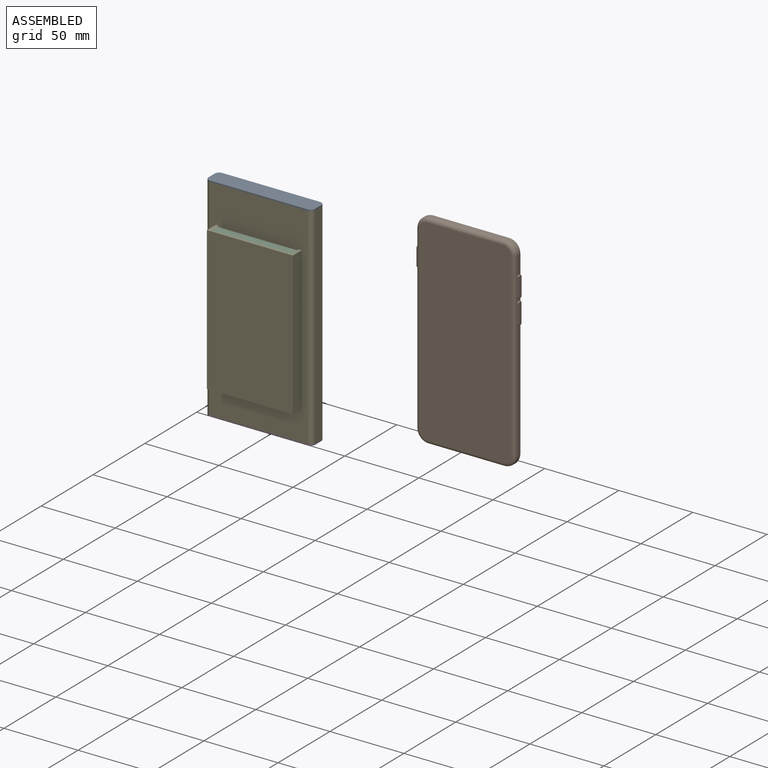
[diagram: assembled view]
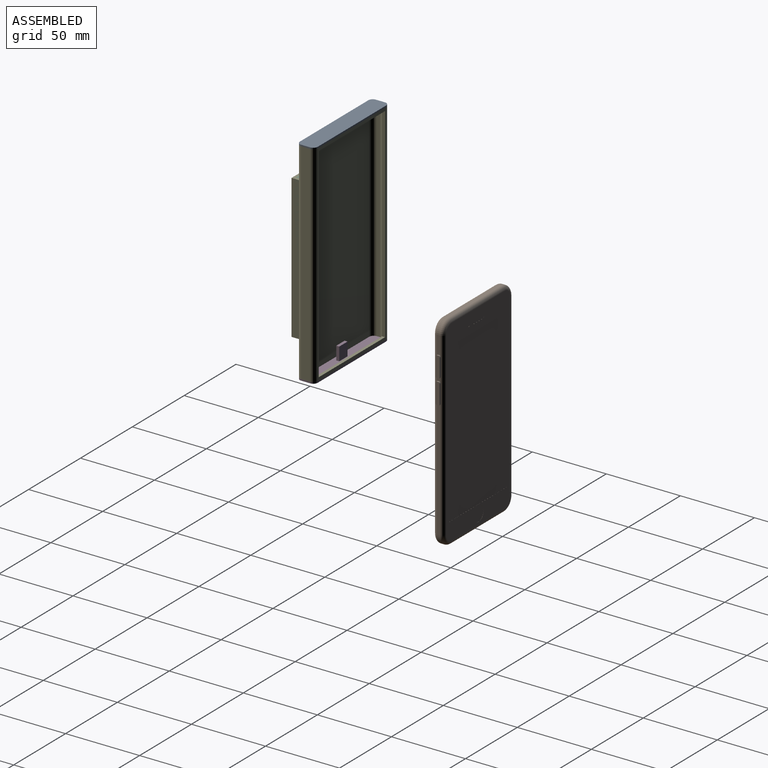
[diagram: assembled view, second angle]
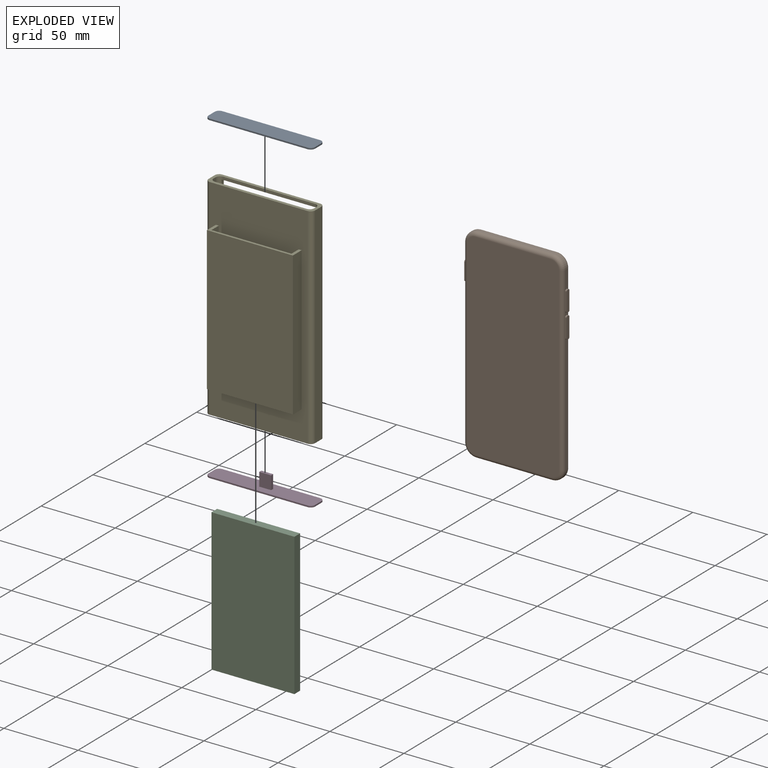
[diagram: exploded view]
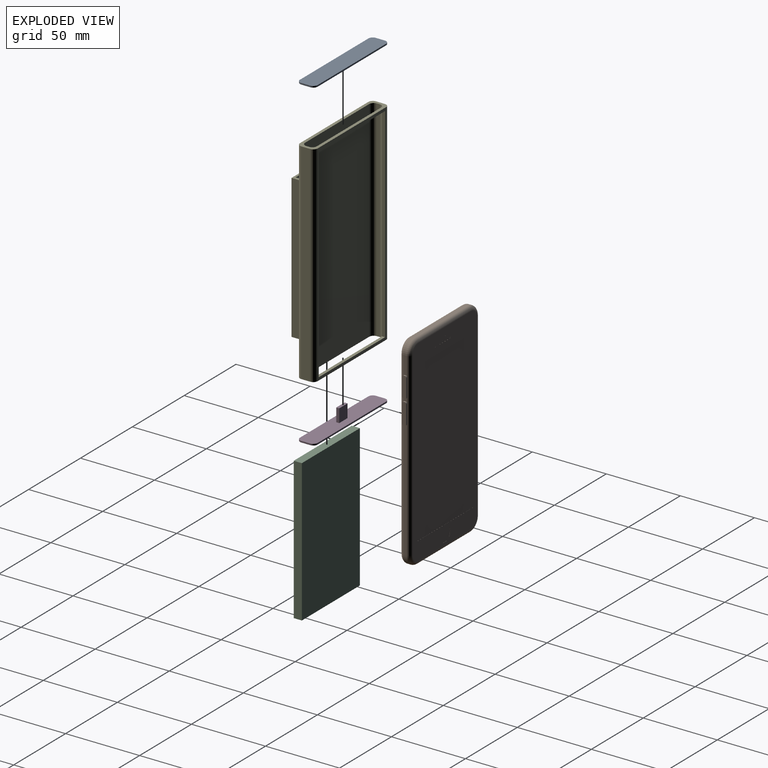
[diagram: exploded view, second angle]
ASSEMBLY  parts=5 mates=3
PART A: 10 faces, bbox 72x12x1 mm
  f0: plane 66x1mm, normal (0,1,0), area 66mm2, adj f1,f7,f8,f9
  f1: cylinder r=3mm len=3mm, axis (0,0,-1), area 4.7mm2, adj f0,f2,f8,f9
  f2: plane 6x1mm, normal (-1,0,0), area 6mm2, adj f1,f3,f8,f9
  f3: cylinder r=3mm len=3mm, axis (0,0,-1), area 4.7mm2, adj f2,f4,f8,f9
  f4: plane 66x1mm, normal (0,-1,0), area 66mm2, adj f3,f5,f8,f9
  f5: cylinder r=3mm len=3mm, axis (0,0,-1), area 4.7mm2, adj f4,f6,f8,f9
  f6: plane 6x1mm, normal (1,0,0), area 6mm2, adj f5,f7,f8,f9
  f7: cylinder r=3mm len=3mm, axis (0,0,-1), area 4.7mm2, adj f0,f6,f8,f9
  f8: plane 72x12mm, normal (0,0,1), area 856.3mm2, adj f0,f1,f2,f3,f4,f5,f6,f7
  f9: plane 72x12mm, normal (0,0,-1), area 856.3mm2, adj f0,f1,f2,f3,f4,f5,f6,f7
PART B: 83 faces, bbox 69x139.3x7 mm
  f0: plane 12.52x2.01mm, normal (-1,0,0), area 24.1mm2, adj f6,f41,f53,f75,f76,f77
  f1: plane 2.92x2.01mm, normal (-1,0,0), area 4.3mm2, adj f41,f53,f64,f65,f66,f79,f80,f81
  f2: plane 97.29x2mm, normal (1,0,0), area 194.1mm2, adj f21,f34,f35,f36,f42,f54
  f3: plane 12.29x2mm, normal (1,0,0), area 24.1mm2, adj f4,f30,f31,f32,f49,f61
  f4: cylinder r=8mm len=8mm, axis (0,0,-1), area 25.1mm2, adj f3,f5,f47,f59
  f5: plane 51x2mm, normal (0,1,0), area 102mm2, adj f4,f6,f45,f57
  f6: cylinder r=8mm len=8mm, axis (0,0,-1), area 25.1mm2, adj f0,f5,f43,f55
  f7: plane 79.91x2mm, normal (-1,0,0), area 159.1mm2, adj f8,f41,f53,f68,f69,f70
  f8: cylinder r=8mm len=8mm, axis (0,0,-1), area 25.1mm2, adj f7,f9,f39,f51
  f9: plane 51x2mm, normal (0,-1,0), area 102mm2, adj f8,f21,f38,f50
  f10: plane 1x0.05mm, normal (1,0,0), area 0.1mm2, adj f11,f16,f22,f26
  f11: plane 10x0.05mm, normal (0,-1,0), area 0.5mm2, adj f10,f12,f22,f26
  f12: plane 1x0.05mm, normal (-1,0,0), area 0.1mm2, adj f11,f16,f22,f26
  f13: plane 55x0.05mm, normal (0,1,0), area 2.8mm2, adj f14,f20,f22,f24
  f14: plane 106.54x0.05mm, normal (1,0,0), area 5.3mm2, adj f13,f15,f22,f24
  f15: plane 55x0.05mm, normal (0,-1,0), area 2.8mm2, adj f14,f20,f22,f24
  f16: plane 10x0.05mm, normal (0,1,0), area 0.5mm2, adj f10,f12,f22,f26
  f17: cylinder r=5mm len=10mm, axis (0,0,-1), area 1.6mm2, adj f22,f25
  f18: cylinder r=0.5mm len=1mm, axis (0,0,-1), area 0.2mm2, adj f22,f27
  f19: cylinder r=0.5mm len=1mm, axis (0,0,-1), area 0.2mm2, adj f22,f28
  f20: plane 106.5x0.05mm, normal (-1,0,0), area 5.3mm2, adj f13,f15,f22,f24
  f21: cylinder r=8mm len=8mm, axis (0,0,-1), area 25.1mm2, adj f2,f9,f40,f52
  f22: plane 133x62.03mm, normal (0,0,1), area 2271.7mm2, adj f10,f11,f12,f13,f14,f15,f16,f17
  f23: plane 133x62.02mm, normal (0,0,-1), area 8220.2mm2, adj f50,f51,f52,f53,f54,f55,f56,f57
  f24: plane 106.54x55mm, normal (0,0,1), area 5858.6mm2, adj f13,f14,f15,f20
  f25: plane 10x10mm, normal (0,0,1), area 78.5mm2, adj f17
  f26: plane 10x1mm, normal (0,0,1), area 10mm2, adj f10,f11,f12,f16
  f27: plane 1x1mm, normal (0,0,1), area 0.8mm2, adj f18
  f28: plane 1x1mm, normal (0,0,1), area 0.8mm2, adj f19
  f29: plane 11x1mm, normal (0,0,-1), area 11mm2, adj f30,f36,f37,f58
  f30: cylinder r=1mm len=1mm, axis (-1,0,0), area 1.6mm2, adj f3,f29,f31,f37,f60
  f31: plane 1x0.7mm, normal (0,1,0), area 0.7mm2, adj f3,f30,f32,f37
  f32: cylinder r=1mm len=1mm, axis (-1,0,0), area 1.6mm2, adj f3,f31,f33,f37,f48
  f33: plane 11x1mm, normal (0,0,1), area 11mm2, adj f32,f34,f37,f46
  f34: cylinder r=1mm len=1mm, axis (-1,0,0), area 1.6mm2, adj f2,f33,f35,f37,f44
  f35: plane 1x0.7mm, normal (0,-1,0), area 0.7mm2, adj f2,f34,f36,f37
  f36: cylinder r=1mm len=1mm, axis (-1,0,0), area 1.6mm2, adj f2,f29,f35,f37,f56
  f37: plane 13x2.7mm, normal (1,0,0), area 34.2mm2, adj f29,f30,f31,f32,f33,f34,f35,f36
  f38: cylinder r=2.5mm len=51mm, axis (-1,0,0), area 200.3mm2, adj f9,f22,f39,f40
  f39: torus R=5.5mm, axis (0,0,1), area 43.7mm2, adj f8,f22,f38,f41
  f40: torus R=5.5mm, axis (0,0,1), area 43.7mm2, adj f21,f22,f38,f42
  f41: cylinder r=2.5mm len=122mm, axis (0,1,0), area 479.1mm2, adj f0,f1,f7,f22,f39,f43,f62,f73
  f42: cylinder r=2.5mm len=97.2mm, axis (0,-1,0), area 381.7mm2, adj f2,f22,f40,f44
  f43: torus R=5.5mm, axis (0,0,1), area 43.7mm2, adj f6,f22,f41,f45
  f44: bspline ~2.55x2.54mm, area 2.9mm2, adj f22,f34,f42,f46
  f45: cylinder r=2.5mm len=51mm, axis (1,0,0), area 200.3mm2, adj f5,f22,f43,f47
  f46: cylinder r=2.5mm len=11mm, axis (0,1,0), area 38.8mm2, adj f22,f33,f44,f48
  f47: torus R=5.5mm, axis (0,0,1), area 43.7mm2, adj f4,f22,f45,f49
  f48: bspline ~2.57x2.57mm, area 2.9mm2, adj f22,f32,f46,f49
  f49: cylinder r=2.5mm len=12.2mm, axis (0,-1,0), area 47.9mm2, adj f3,f22,f47,f48
  f50: cylinder r=2.5mm len=51mm, axis (1,0,0), area 200.3mm2, adj f9,f23,f51,f52
  f51: torus R=5.5mm, axis (0,0,1), area 43.7mm2, adj f8,f23,f50,f53
  f52: torus R=5.5mm, axis (0,0,1), area 43.7mm2, adj f21,f23,f50,f54
  f53: cylinder r=2.5mm len=122mm, axis (0,-1,0), area 477.5mm2, adj f0,f1,f7,f23,f51,f55,f72,f77
  f54: cylinder r=2.5mm len=97.29mm, axis (0,1,0), area 382mm2, adj f2,f23,f52,f56
  f55: torus R=5.5mm, axis (0,0,1), area 43.7mm2, adj f6,f23,f53,f57
  f56: bspline ~2.67x2.66mm, area 2.7mm2, adj f23,f36,f54,f58
  f57: cylinder r=2.5mm len=51mm, axis (-1,0,0), area 200.3mm2, adj f5,f23,f55,f59
  f58: cylinder r=2.5mm len=11mm, axis (0,1,0), area 39.9mm2, adj f23,f29,f56,f60
  f59: torus R=5.5mm, axis (0,0,1), area 43.7mm2, adj f4,f23,f57,f61
  f60: bspline ~2.57x2.56mm, area 2.7mm2, adj f23,f30,f58,f61
  f61: cylinder r=2.5mm len=12.29mm, axis (0,1,0), area 48.2mm2, adj f3,f23,f59,f60
  f62: plane 14.23x0.5mm, normal (1,0,0), area 6.9mm2, adj f41,f63,f64,f70
  f63: plane 12.49x1mm, normal (0,0,1), area 12.5mm2, adj f62,f64,f70,f71
  f64: cylinder r=1mm len=1mm, axis (1,0,0), area 1.6mm2, adj f1,f62,f63,f65,f71
  f65: plane 1x0.7mm, normal (0,1,0), area 0.7mm2, adj f1,f64,f66,f71
  f66: cylinder r=1mm len=1mm, axis (1,0,0), area 1.6mm2, adj f1,f65,f67,f71,f72
  f67: plane 12.49x1mm, normal (0,0,-1), area 12.5mm2, adj f66,f68,f71,f72
  f68: cylinder r=1mm len=1mm, axis (1,0,0), area 1.6mm2, adj f7,f67,f69,f71,f72
  f69: plane 1x0.7mm, normal (0,-1,0), area 0.7mm2, adj f7,f68,f70,f71
  f70: cylinder r=1mm len=1mm, axis (1,0,0), area 1.6mm2, adj f7,f62,f63,f69,f71
  f71: plane 14.49x2.7mm, normal (-1,0,0), area 38.3mm2, adj f63,f64,f65,f66,f67,f68,f69,f70
  f72: plane 13.69x0.2mm, normal (1,0,0), area 2.7mm2, adj f53,f66,f67,f68
  f73: plane 13.81x0.57mm, normal (1,0,0), area 7.6mm2, adj f41,f74,f75,f81
  f74: plane 12x1mm, normal (0,0,1), area 12mm2, adj f73,f75,f81,f82
  f75: cylinder r=1mm len=1mm, axis (1,0,0), area 1.6mm2, adj f0,f73,f74,f76,f82
  f76: plane 1x0.7mm, normal (0,1,0), area 0.7mm2, adj f0,f75,f77,f82
  f77: cylinder r=1mm len=1mm, axis (1,0,0), area 1.6mm2, adj f0,f53,f76,f78,f82
  f78: plane 12.01x1.01mm, normal (0,0,-1), area 12mm2, adj f53,f77,f79,f82
  f79: cylinder r=1mm len=1mm, axis (1,0,0), area 1.6mm2, adj f1,f53,f78,f80,f82
  f80: plane 1x0.7mm, normal (0,-1,0), area 0.7mm2, adj f1,f79,f81,f82
  f81: cylinder r=1mm len=1mm, axis (1,0,0), area 1.6mm2, adj f1,f73,f74,f80,f82
  f82: plane 14x2.7mm, normal (-1,0,0), area 36.9mm2, adj f74,f75,f76,f77,f78,f79,f80,f81
PART C: 11 faces, bbox 56x5.5x96 mm
  f0: plane 56x5.5mm, normal (0,0,-1), area 292mm2, adj f2,f3,f4,f5,f6,f7,f8,f9
  f1: plane 56x5.5mm, normal (0,0,1), area 308mm2, adj f2,f3,f4,f5
  f2: plane 96x5.5mm, normal (-1,0,0), area 528mm2, adj f0,f1,f4,f5
  f3: plane 96x5.5mm, normal (1,0,0), area 528mm2, adj f0,f1,f4,f5
  f4: plane 96x56mm, normal (0,-1,0), area 5376mm2, adj f0,f1,f2,f3
  f5: plane 96x56mm, normal (0,1,0), area 5376mm2, adj f0,f1,f2,f3
  f6: plane 10x8mm, normal (0,1,0), area 80mm2, adj f0,f7,f9,f10
  f7: plane 10x2mm, normal (1,0,0), area 20mm2, adj f0,f6,f8,f10
  f8: plane 10x8mm, normal (0,-1,0), area 80mm2, adj f0,f7,f9,f10
  f9: plane 10x2mm, normal (-1,0,0), area 20mm2, adj f0,f6,f8,f10
  f10: plane 8x2mm, normal (0,0,-1), area 16mm2, adj f6,f7,f8,f9
PART D: 15 faces, bbox 72x12x10 mm
  f0: plane 9x8mm, normal (0,1,0), area 72mm2, adj f1,f3,f4,f13
  f1: plane 9x2mm, normal (-1,0,0), area 18mm2, adj f0,f2,f4,f13
  f2: plane 9x8mm, normal (0,-1,0), area 72mm2, adj f1,f3,f4,f13
  f3: plane 9x2mm, normal (1,0,0), area 18mm2, adj f0,f2,f4,f13
  f4: plane 8x2mm, normal (0,0,1), area 16mm2, adj f0,f1,f2,f3
  f5: plane 66x1mm, normal (0,1,0), area 66mm2, adj f6,f12,f13,f14
  f6: cylinder r=3mm len=3mm, axis (0,0,-1), area 4.7mm2, adj f5,f7,f13,f14
  f7: plane 6x1mm, normal (-1,0,0), area 6mm2, adj f6,f8,f13,f14
  f8: cylinder r=3mm len=3mm, axis (0,0,-1), area 4.7mm2, adj f7,f9,f13,f14
  f9: plane 66x1mm, normal (0,-1,0), area 66mm2, adj f8,f10,f13,f14
  f10: cylinder r=3mm len=3mm, axis (0,0,-1), area 4.7mm2, adj f9,f11,f13,f14
  f11: plane 6x1mm, normal (1,0,0), area 6mm2, adj f10,f12,f13,f14
  f12: cylinder r=3mm len=3mm, axis (0,0,-1), area 4.7mm2, adj f5,f11,f13,f14
  f13: plane 72x12mm, normal (0,0,1), area 840.3mm2, adj f0,f1,f2,f3,f5,f6,f7,f8
  f14: plane 72x12mm, normal (0,0,-1), area 856.3mm2, adj f5,f6,f7,f8,f9,f10,f11,f12
PART E: 37 faces, bbox 72x20.5x142 mm
  f0: plane 142x66mm, normal (0,1,0), area 540mm2, adj f4,f16,f17,f18,f19,f20,f21,f22
  f1: cylinder r=3mm len=142mm, axis (0,0,-1), area 528.5mm2, adj f3,f10,f15,f17,f18,f19,f20,f21
  f2: cylinder r=3mm len=142mm, axis (0,0,-1), area 528.5mm2, adj f3,f14,f15,f17,f18,f19,f21,f22
  f3: plane 62x2mm, normal (0,-1,0), area 124mm2, adj f1,f2,f17,f19
  f4: cylinder r=3mm len=142mm, axis (0,0,-1), area 669.2mm2, adj f0,f5,f17,f18
  f5: plane 142x6mm, normal (-1,0,0), area 852mm2, adj f4,f6,f17,f18
  f6: cylinder r=3mm len=142mm, axis (0,0,-1), area 669.2mm2, adj f5,f7,f17,f18
  f7: plane 142x66mm, normal (0,-1,0), area 8876mm2, adj f6,f8,f17,f18,f23,f24,f25,f26
  f8: cylinder r=3mm len=142mm, axis (0,0,-1), area 669.2mm2, adj f7,f9,f17,f18
  f9: plane 142x6mm, normal (1,0,0), area 852mm2, adj f8,f16,f17,f18
  f10: plane 142x2mm, normal (-1,0,0), area 284mm2, adj f1,f11,f17,f18
  f11: cylinder r=3mm len=142mm, axis (0,0,-1), area 669.2mm2, adj f10,f12,f17,f18
  f12: plane 142x62mm, normal (0,1,0), area 8804mm2, adj f11,f13,f17,f18
  f13: cylinder r=3mm len=142mm, axis (0,0,-1), area 669.2mm2, adj f12,f14,f17,f18
  f14: plane 142x2mm, normal (1,0,0), area 284mm2, adj f2,f13,f17,f18
  f15: plane 62x2mm, normal (0,-1,0), area 124mm2, adj f1,f2,f18,f21
  f16: cylinder r=3mm len=142mm, axis (0,0,-1), area 669.2mm2, adj f0,f9,f17,f18
  f17: plane 72x12mm, normal (0,0,1), area 320mm2, adj f0,f1,f2,f3,f4,f5,f6,f7
  f18: plane 72x12mm, normal (0,0,-1), area 320mm2, adj f0,f1,f2,f4,f5,f6,f7,f8
  f19: plane 64x2.17mm, normal (0,0,-1), area 128.1mm2, adj f0,f1,f2,f3,f20,f22
  f20: plane 138x2.17mm, normal (-1,0,0), area 299.7mm2, adj f0,f1,f19,f21
  f21: plane 64x2.17mm, normal (0,0,1), area 128.1mm2, adj f0,f1,f2,f15,f20,f22
  f22: plane 138x2.17mm, normal (1,0,0), area 299.7mm2, adj f0,f2,f19,f21
  f23: plane 58x8.5mm, normal (0,0,1), area 115mm2, adj f7,f24,f26,f27,f29,f30,f31
  f24: plane 97x8.5mm, normal (-1,0,0), area 824.5mm2, adj f7,f23,f25,f30
  f25: plane 58x8.5mm, normal (0,0,-1), area 493mm2, adj f7,f24,f26,f30
  f26: plane 97x8.5mm, normal (1,0,0), area 824.5mm2, adj f7,f23,f25,f30
  f27: plane 95x7mm, normal (-1,0,0), area 665mm2, adj f7,f23,f28,f31
  f28: plane 54x7mm, normal (0,0,1), area 362mm2, adj f7,f27,f29,f31,f32,f33,f34,f35
  f29: plane 95x7mm, normal (1,0,0), area 665mm2, adj f7,f23,f28,f31
  f30: plane 97x58mm, normal (0,-1,0), area 5626mm2, adj f23,f24,f25,f26
  f31: plane 95x54mm, normal (0,1,0), area 5130mm2, adj f23,f27,f28,f29
  f32: plane 10x8mm, normal (0,1,0), area 80mm2, adj f28,f33,f35,f36
  f33: plane 10x2mm, normal (-1,0,0), area 20mm2, adj f28,f32,f34,f36
  f34: plane 10x8mm, normal (0,-1,0), area 80mm2, adj f28,f33,f35,f36
  f35: plane 10x2mm, normal (1,0,0), area 20mm2, adj f28,f32,f34,f36
  f36: plane 8x2mm, normal (0,0,1), area 16mm2, adj f32,f33,f34,f35
PLACE A t=(-17.19,34.55,129.39)mm
PLACE B rot(axis=(0,0.71,0.71),180deg) t=(32.99,154.82,-8.22)mm
PLACE C t=(-20.09,27.16,37.95)mm
PLACE D t=(-17.19,34.55,-13.61)mm
PLACE E t=(-23.7,39.28,-12.61)mm fixed
MATE fastened C.f2 <-> E.f29  axis (1,0,0) through (-45.1,21.66,104.39)mm
MATE fastened A.f9 <-> E.f17  axis (0,0,-1) through (-54.1,34.66,129.39)mm
MATE fastened E.f18 <-> D.f13  axis (0,0,-1) through (17.9,34.66,-12.61)mm
